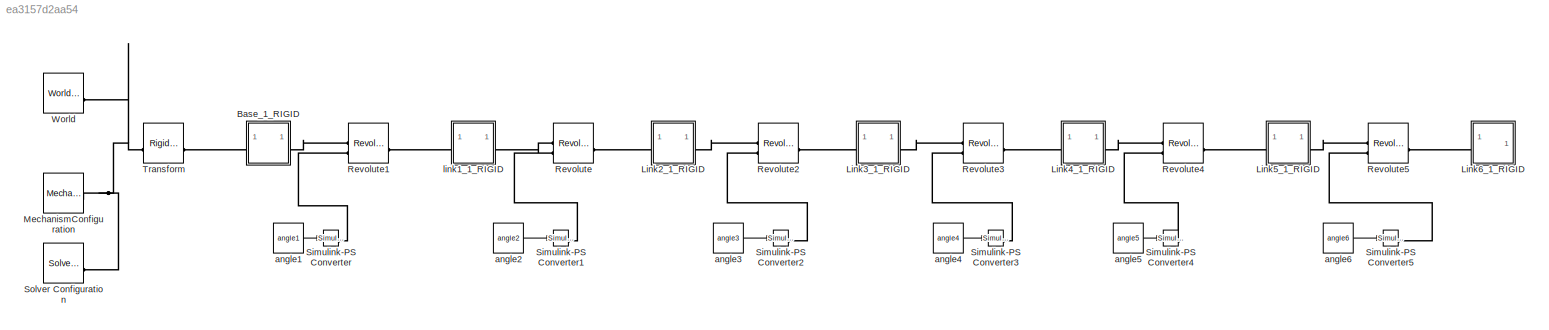
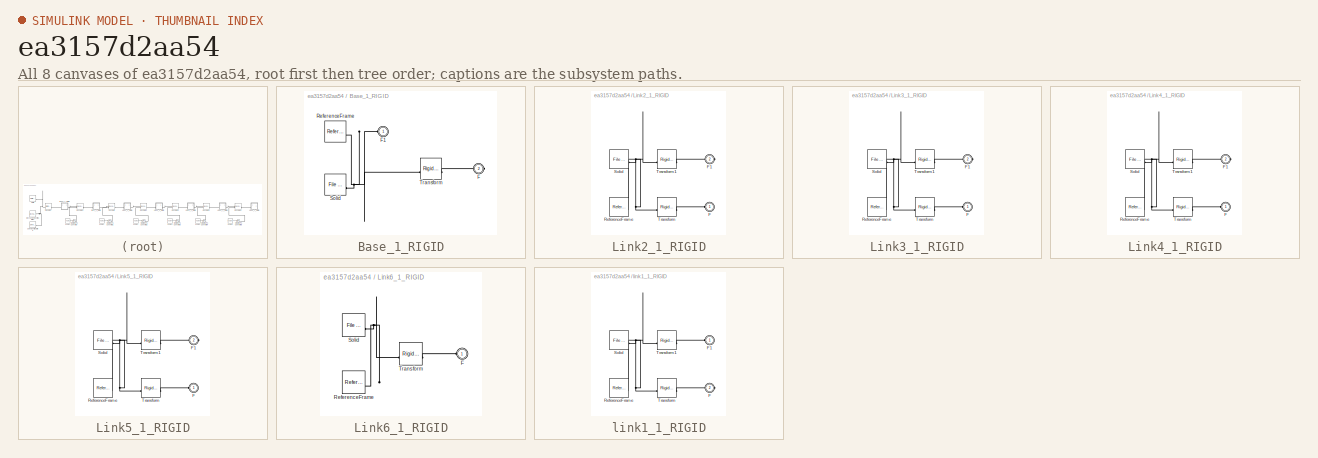
[diagram: thumbnail index - all 8 canvases of the model, root first then tree order]
MODEL slx_ea3157d2aa54
KIND model
CONFIG AbsTol = auto
CONFIG EnableMultiTasking = off
CONFIG FixedStep = auto
CONFIG MaxStep = auto
CONFIG MinStep = auto
CONFIG RelTol = 1e-3
CONFIG SampleTimeConstraint = Unconstrained
CONFIG SolverName = VariableStepAuto
CONFIG StartTime = 0.0
CONFIG StopTime = inf
WORKSPACE source: external: MATLAB File  (data not in archive)
BLOCK [SubSystem] Base_1_RIGID
BLOCK [PMIOPort] Base_1_RIGID/F
  Port = 2
  Side = Right
BLOCK [PMIOPort] Base_1_RIGID/F1
  Side = Left
BLOCK [Reference] Base_1_RIGID/ReferenceFrame  REF=sm_lib/Frames and
Transforms/Reference
Frame
  SourceBlock = sm_lib/Frames and\nTransforms/Reference\nFrame
  SourceType = Reference\nFrame
BLOCK [Reference] Base_1_RIGID/Solid  REF=sm_lib/Body Elements/File Solid
  SourceBlock = sm_lib/Body Elements/File Solid
  SourceType = File Solid
BLOCK [Reference] Base_1_RIGID/Transform  REF=sm_lib/Frames and
Transforms/Rigid
Transform
  SourceBlock = sm_lib/Frames and\nTransforms/Rigid\nTransform
  SourceType = Rigid\nTransform
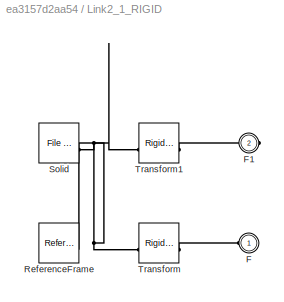
BLOCK [SubSystem] Link2_1_RIGID
BLOCK [PMIOPort] Link2_1_RIGID/F
  Side = Left
BLOCK [PMIOPort] Link2_1_RIGID/F1
  Port = 2
  Side = Right
BLOCK [Reference] Link2_1_RIGID/ReferenceFrame  REF=sm_lib/Frames and
Transforms/Reference
Frame
  SourceBlock = sm_lib/Frames and\nTransforms/Reference\nFrame
  SourceType = Reference\nFrame
BLOCK [Reference] Link2_1_RIGID/Solid  REF=sm_lib/Body Elements/File Solid
  SourceBlock = sm_lib/Body Elements/File Solid
  SourceType = File Solid
BLOCK [Reference] Link2_1_RIGID/Transform  REF=sm_lib/Frames and
Transforms/Rigid
Transform
  SourceBlock = sm_lib/Frames and\nTransforms/Rigid\nTransform
  SourceType = Rigid\nTransform
BLOCK [Reference] Link2_1_RIGID/Transform1  REF=sm_lib/Frames and
Transforms/Rigid
Transform
  SourceBlock = sm_lib/Frames and\nTransforms/Rigid\nTransform
  SourceType = Rigid\nTransform
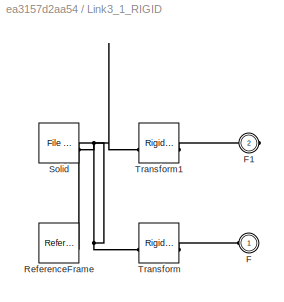
BLOCK [SubSystem] Link3_1_RIGID
BLOCK [PMIOPort] Link3_1_RIGID/F
  Side = Left
BLOCK [PMIOPort] Link3_1_RIGID/F1
  Port = 2
  Side = Right
BLOCK [Reference] Link3_1_RIGID/ReferenceFrame  REF=sm_lib/Frames and
Transforms/Reference
Frame
  SourceBlock = sm_lib/Frames and\nTransforms/Reference\nFrame
  SourceType = Reference\nFrame
BLOCK [Reference] Link3_1_RIGID/Solid  REF=sm_lib/Body Elements/File Solid
  SourceBlock = sm_lib/Body Elements/File Solid
  SourceType = File Solid
BLOCK [Reference] Link3_1_RIGID/Transform  REF=sm_lib/Frames and
Transforms/Rigid
Transform
  SourceBlock = sm_lib/Frames and\nTransforms/Rigid\nTransform
  SourceType = Rigid\nTransform
BLOCK [Reference] Link3_1_RIGID/Transform1  REF=sm_lib/Frames and
Transforms/Rigid
Transform
  SourceBlock = sm_lib/Frames and\nTransforms/Rigid\nTransform
  SourceType = Rigid\nTransform
BLOCK [SubSystem] Link4_1_RIGID
BLOCK [PMIOPort] Link4_1_RIGID/F
  Side = Left
BLOCK [PMIOPort] Link4_1_RIGID/F1
  Port = 2
  Side = Right
BLOCK [Reference] Link4_1_RIGID/ReferenceFrame  REF=sm_lib/Frames and
Transforms/Reference
Frame
  SourceBlock = sm_lib/Frames and\nTransforms/Reference\nFrame
  SourceType = Reference\nFrame
BLOCK [Reference] Link4_1_RIGID/Solid  REF=sm_lib/Body Elements/File Solid
  SourceBlock = sm_lib/Body Elements/File Solid
  SourceType = File Solid
BLOCK [Reference] Link4_1_RIGID/Transform  REF=sm_lib/Frames and
Transforms/Rigid
Transform
  SourceBlock = sm_lib/Frames and\nTransforms/Rigid\nTransform
  SourceType = Rigid\nTransform
BLOCK [Reference] Link4_1_RIGID/Transform1  REF=sm_lib/Frames and
Transforms/Rigid
Transform
  SourceBlock = sm_lib/Frames and\nTransforms/Rigid\nTransform
  SourceType = Rigid\nTransform
BLOCK [SubSystem] Link5_1_RIGID
BLOCK [PMIOPort] Link5_1_RIGID/F
  Side = Left
BLOCK [PMIOPort] Link5_1_RIGID/F1
  Port = 2
  Side = Right
BLOCK [Reference] Link5_1_RIGID/ReferenceFrame  REF=sm_lib/Frames and
Transforms/Reference
Frame
  SourceBlock = sm_lib/Frames and\nTransforms/Reference\nFrame
  SourceType = Reference\nFrame
BLOCK [Reference] Link5_1_RIGID/Solid  REF=sm_lib/Body Elements/File Solid
  SourceBlock = sm_lib/Body Elements/File Solid
  SourceType = File Solid
BLOCK [Reference] Link5_1_RIGID/Transform  REF=sm_lib/Frames and
Transforms/Rigid
Transform
  SourceBlock = sm_lib/Frames and\nTransforms/Rigid\nTransform
  SourceType = Rigid\nTransform
BLOCK [Reference] Link5_1_RIGID/Transform1  REF=sm_lib/Frames and
Transforms/Rigid
Transform
  SourceBlock = sm_lib/Frames and\nTransforms/Rigid\nTransform
  SourceType = Rigid\nTransform
BLOCK [SubSystem] Link6_1_RIGID
BLOCK [PMIOPort] Link6_1_RIGID/F
  Side = Left
BLOCK [Reference] Link6_1_RIGID/ReferenceFrame  REF=sm_lib/Frames and
Transforms/Reference
Frame
  SourceBlock = sm_lib/Frames and\nTransforms/Reference\nFrame
  SourceType = Reference\nFrame
BLOCK [Reference] Link6_1_RIGID/Solid  REF=sm_lib/Body Elements/File Solid
  SourceBlock = sm_lib/Body Elements/File Solid
  SourceType = File Solid
BLOCK [Reference] Link6_1_RIGID/Transform  REF=sm_lib/Frames and
Transforms/Rigid
Transform
  SourceBlock = sm_lib/Frames and\nTransforms/Rigid\nTransform
  SourceType = Rigid\nTransform
BLOCK [Reference] MechanismConfiguration  REF=sm_lib/Utilities/Mechanism
Configuration
  SourceBlock = sm_lib/Utilities/Mechanism\nConfiguration
  SourceType = Mechanism\nConfiguration
BLOCK [Reference] Revolute  REF=sm_lib/Joints/Revolute Joint
  SourceBlock = sm_lib/Joints/Revolute Joint
  SourceType = Revolute Joint
BLOCK [Reference] Revolute1  REF=sm_lib/Joints/Revolute Joint
  SourceBlock = sm_lib/Joints/Revolute Joint
  SourceType = Revolute Joint
BLOCK [Reference] Revolute2  REF=sm_lib/Joints/Revolute Joint
  SourceBlock = sm_lib/Joints/Revolute Joint
  SourceType = Revolute Joint
BLOCK [Reference] Revolute3  REF=sm_lib/Joints/Revolute Joint
  SourceBlock = sm_lib/Joints/Revolute Joint
  SourceType = Revolute Joint
BLOCK [Reference] Revolute4  REF=sm_lib/Joints/Revolute Joint
  SourceBlock = sm_lib/Joints/Revolute Joint
  SourceType = Revolute Joint
BLOCK [Reference] Revolute5  REF=sm_lib/Joints/Revolute Joint
  SourceBlock = sm_lib/Joints/Revolute Joint
  SourceType = Revolute Joint
BLOCK [Reference] Simulink-PS Converter  REF=nesl_utility/Simulink-PS
Converter
  SourceBlock = nesl_utility/Simulink-PS\nConverter
  SourceType = Simulink-PS\nConverter
BLOCK [Reference] Simulink-PS Converter1  REF=nesl_utility/Simulink-PS
Converter
  SourceBlock = nesl_utility/Simulink-PS\nConverter
  SourceType = Simulink-PS\nConverter
BLOCK [Reference] Simulink-PS Converter2  REF=nesl_utility/Simulink-PS
Converter
  SourceBlock = nesl_utility/Simulink-PS\nConverter
  SourceType = Simulink-PS\nConverter
BLOCK [Reference] Simulink-PS Converter3  REF=nesl_utility/Simulink-PS
Converter
  SourceBlock = nesl_utility/Simulink-PS\nConverter
  SourceType = Simulink-PS\nConverter
BLOCK [Reference] Simulink-PS Converter4  REF=nesl_utility/Simulink-PS
Converter
  SourceBlock = nesl_utility/Simulink-PS\nConverter
  SourceType = Simulink-PS\nConverter
BLOCK [Reference] Simulink-PS Converter5  REF=nesl_utility/Simulink-PS
Converter
  SourceBlock = nesl_utility/Simulink-PS\nConverter
  SourceType = Simulink-PS\nConverter
BLOCK [Reference] Solver Configuration  REF=nesl_utility/Solver
Configuration
  SourceBlock = nesl_utility/Solver\nConfiguration
  SourceType = Solver\nConfiguration
BLOCK [Reference] Transform  REF=sm_lib/Frames and
Transforms/Rigid
Transform
  SourceBlock = sm_lib/Frames and\nTransforms/Rigid\nTransform
  SourceType = Rigid\nTransform
BLOCK [Reference] World  REF=sm_lib/Frames and
Transforms/World Frame
  SourceBlock = sm_lib/Frames and\nTransforms/World Frame
  SourceType = World Frame
BLOCK [Constant] angle1
  Value = angle1
BLOCK [Constant] angle2
  Value = angle2
BLOCK [Constant] angle3
  Value = angle3
BLOCK [Constant] angle4
  Value = angle4
BLOCK [Constant] angle5
  Value = angle5
BLOCK [Constant] angle6
  Value = angle6
BLOCK [SubSystem] link1_1_RIGID
BLOCK [PMIOPort] link1_1_RIGID/F
  Port = 2
  Side = Right
BLOCK [PMIOPort] link1_1_RIGID/F1
  Side = Left
BLOCK [Reference] link1_1_RIGID/ReferenceFrame  REF=sm_lib/Frames and
Transforms/Reference
Frame
  SourceBlock = sm_lib/Frames and\nTransforms/Reference\nFrame
  SourceType = Reference\nFrame
BLOCK [Reference] link1_1_RIGID/Solid  REF=sm_lib/Body Elements/File Solid
  SourceBlock = sm_lib/Body Elements/File Solid
  SourceType = File Solid
BLOCK [Reference] link1_1_RIGID/Transform  REF=sm_lib/Frames and
Transforms/Rigid
Transform
  SourceBlock = sm_lib/Frames and\nTransforms/Rigid\nTransform
  SourceType = Rigid\nTransform
BLOCK [Reference] link1_1_RIGID/Transform1  REF=sm_lib/Frames and
Transforms/Rigid
Transform
  SourceBlock = sm_lib/Frames and\nTransforms/Rigid\nTransform
  SourceType = Rigid\nTransform
LINE angle1:1 -> Simulink-PS Converter:1
LINE angle2:1 -> Simulink-PS Converter1:1
LINE angle3:1 -> Simulink-PS Converter2:1
LINE angle4:1 -> Simulink-PS Converter3:1
LINE angle5:1 -> Simulink-PS Converter4:1
LINE angle6:1 -> Simulink-PS Converter5:1
PNET net1: Base_1_RIGID/F1:RConn1 -- Base_1_RIGID/ReferenceFrame:RConn1 -- Base_1_RIGID/Solid:RConn1 -- Base_1_RIGID/Transform:LConn1
PLINE Base_1_RIGID/F:RConn1 -- Base_1_RIGID/Transform:RConn1
PLINE Base_1_RIGID:LConn1 -- Transform:RConn1
PLINE Base_1_RIGID:RConn1 -- Revolute1:LConn1
PLINE Link2_1_RIGID/F1:RConn1 -- Link2_1_RIGID/Transform1:RConn1
PLINE Link2_1_RIGID/F:RConn1 -- Link2_1_RIGID/Transform:RConn1
PNET net2: Link2_1_RIGID/ReferenceFrame:RConn1 -- Link2_1_RIGID/Solid:RConn1 -- Link2_1_RIGID/Transform1:LConn1 -- Link2_1_RIGID/Transform:LConn1
PLINE Link2_1_RIGID:LConn1 -- Revolute:RConn1
PLINE Link2_1_RIGID:RConn1 -- Revolute2:LConn1
PLINE Link3_1_RIGID/F1:RConn1 -- Link3_1_RIGID/Transform1:RConn1
PLINE Link3_1_RIGID/F:RConn1 -- Link3_1_RIGID/Transform:RConn1
PNET net3: Link3_1_RIGID/ReferenceFrame:RConn1 -- Link3_1_RIGID/Solid:RConn1 -- Link3_1_RIGID/Transform1:LConn1 -- Link3_1_RIGID/Transform:LConn1
PLINE Link3_1_RIGID:LConn1 -- Revolute2:RConn1
PLINE Link3_1_RIGID:RConn1 -- Revolute3:LConn1
PLINE Link4_1_RIGID/F1:RConn1 -- Link4_1_RIGID/Transform1:RConn1
PLINE Link4_1_RIGID/F:RConn1 -- Link4_1_RIGID/Transform:RConn1
PNET net4: Link4_1_RIGID/ReferenceFrame:RConn1 -- Link4_1_RIGID/Solid:RConn1 -- Link4_1_RIGID/Transform1:LConn1 -- Link4_1_RIGID/Transform:LConn1
PLINE Link4_1_RIGID:LConn1 -- Revolute3:RConn1
PLINE Link4_1_RIGID:RConn1 -- Revolute4:LConn1
PLINE Link5_1_RIGID/F1:RConn1 -- Link5_1_RIGID/Transform1:RConn1
PLINE Link5_1_RIGID/F:RConn1 -- Link5_1_RIGID/Transform:RConn1
PNET net5: Link5_1_RIGID/ReferenceFrame:RConn1 -- Link5_1_RIGID/Solid:RConn1 -- Link5_1_RIGID/Transform1:LConn1 -- Link5_1_RIGID/Transform:LConn1
PLINE Link5_1_RIGID:LConn1 -- Revolute4:RConn1
PLINE Link5_1_RIGID:RConn1 -- Revolute5:LConn1
PLINE Link6_1_RIGID/F:RConn1 -- Link6_1_RIGID/Transform:RConn1
PNET net6: Link6_1_RIGID/ReferenceFrame:RConn1 -- Link6_1_RIGID/Solid:RConn1 -- Link6_1_RIGID/Transform:LConn1
PLINE Link6_1_RIGID:LConn1 -- Revolute5:RConn1
PNET net7: MechanismConfiguration:RConn1 -- Solver Configuration:RConn1 -- Transform:LConn1 -- World:RConn1
PLINE Revolute1:LConn2 -- Simulink-PS Converter:RConn1
PLINE Revolute1:RConn1 -- link1_1_RIGID:LConn1
PLINE Revolute2:LConn2 -- Simulink-PS Converter2:RConn1
PLINE Revolute3:LConn2 -- Simulink-PS Converter3:RConn1
PLINE Revolute4:LConn2 -- Simulink-PS Converter4:RConn1
PLINE Revolute5:LConn2 -- Simulink-PS Converter5:RConn1
PLINE Revolute:LConn1 -- link1_1_RIGID:RConn1
PLINE Revolute:LConn2 -- Simulink-PS Converter1:RConn1
PLINE link1_1_RIGID/F1:RConn1 -- link1_1_RIGID/Transform1:RConn1
PLINE link1_1_RIGID/F:RConn1 -- link1_1_RIGID/Transform:RConn1
PNET net8: link1_1_RIGID/ReferenceFrame:RConn1 -- link1_1_RIGID/Solid:RConn1 -- link1_1_RIGID/Transform1:LConn1 -- link1_1_RIGID/Transform:LConn1
note: PNET lines group multi-terminal physical nets as a canonical sorted terminal list (undirected conserving connections); 2-terminal nets keep the pairwise PLINE form
